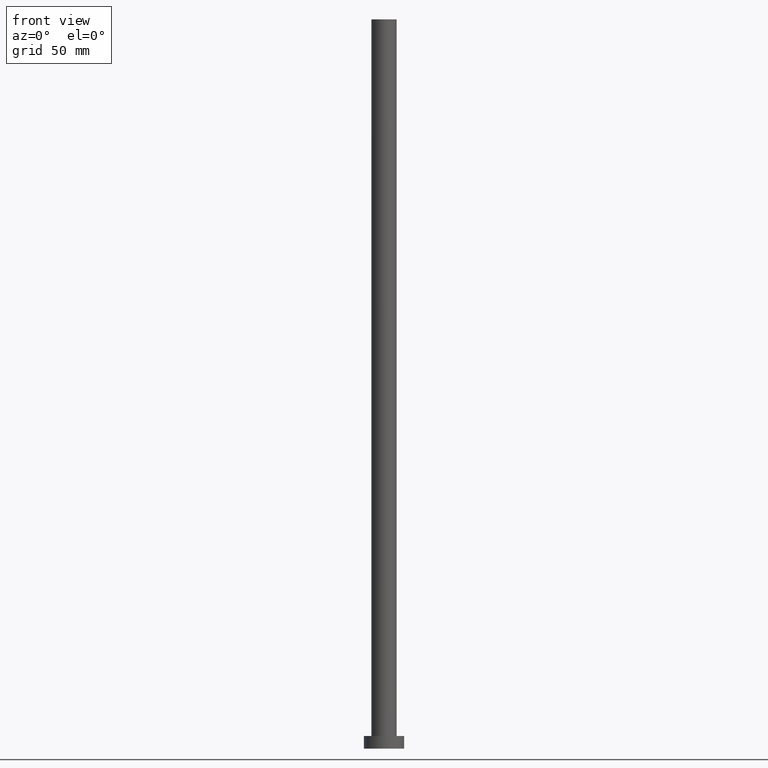
[diagram: clean part render]
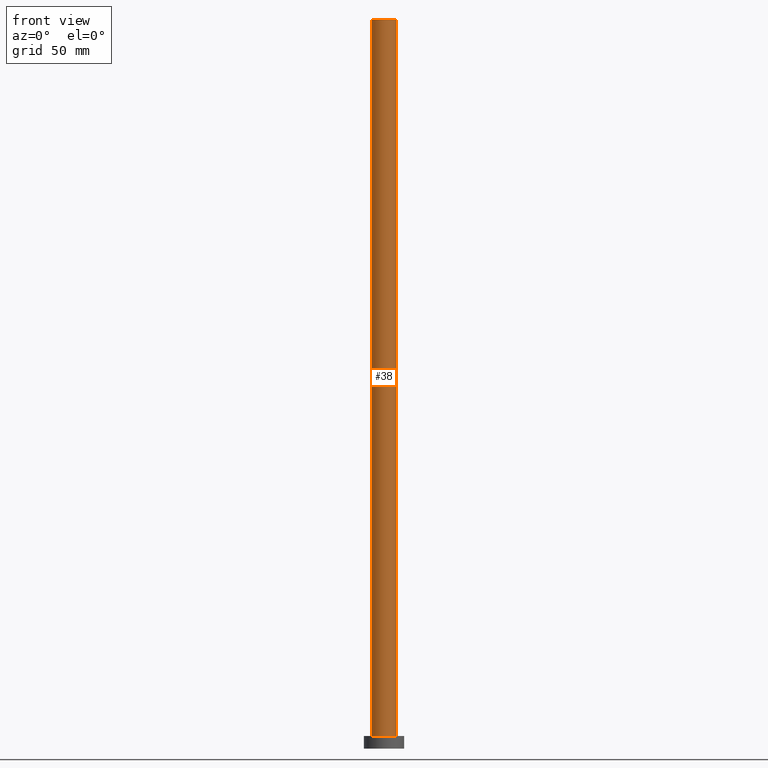
[diagram: same view with one face highlighted and labeled with its STEP entity id]
A machine part, front view. The second image highlights one B-rep face of the part: STEP entity #38.
In plain terms, the highlighted cylindrical surface (edge-blend (fillet) strip) has radius 5 mm, axis along (-0, -0, -1).
Its self-contained STEP definition (entity closure, byte-faithful):
#12 = LINE ( 'NONE', #169, #15 ) ;
#15 = VECTOR ( 'NONE', #29, 1000.000000000000000 ) ;
#24 = VERTEX_POINT ( 'NONE', #255 ) ;
#28 = LINE ( 'NONE', #152, #237 ) ;
#29 = DIRECTION ( 'NONE',  ( -0.000000000000000000, -0.000000000000000000, -1.000000000000000000 ) ) ;
#32 = CIRCLE ( 'NONE', #58, 5.000000000000000888 ) ;
#38 = ADVANCED_FACE ( 'NONE', ( #65 ), #198, .T. ) ;
#45 = CARTESIAN_POINT ( 'NONE',  ( 0.000000000000000000, 0.000000000000000000, 289.5000000000000000 ) ) ;
#46 = DIRECTION ( 'NONE',  ( 0.000000000000000000, 0.000000000000000000, 1.000000000000000000 ) ) ;
#54 = ORIENTED_EDGE ( 'NONE', *, *, #165, .T. ) ;
#58 = AXIS2_PLACEMENT_3D ( 'NONE', #45, #187, #148 ) ;
#65 = FACE_OUTER_BOUND ( 'NONE', #117, .T. ) ;
#68 = VERTEX_POINT ( 'NONE', #228 ) ;
#69 = DIRECTION ( 'NONE',  ( -0.000000000000000000, -0.000000000000000000, -1.000000000000000000 ) ) ;
#77 = EDGE_CURVE ( 'NONE', #68, #196, #12, .T. ) ;
#82 = EDGE_CURVE ( 'NONE', #253, #68, #32, .T. ) ;
#101 = DIRECTION ( 'NONE',  ( -1.000000000000000000, 0.000000000000000000, 0.000000000000000000 ) ) ;
#110 = CIRCLE ( 'NONE', #221, 5.000000000000000888 ) ;
#117 = EDGE_LOOP ( 'NONE', ( #131, #135, #243, #54 ) ) ;
#118 = EDGE_CURVE ( 'NONE', #253, #24, #28, .T. ) ;
#130 = CARTESIAN_POINT ( 'NONE',  ( 0.000000000000000000, 0.000000000000000000, 5.000000000000000000 ) ) ;
#131 = ORIENTED_EDGE ( 'NONE', *, *, #77, .F. ) ;
#135 = ORIENTED_EDGE ( 'NONE', *, *, #82, .F. ) ;
#143 = DIRECTION ( 'NONE',  ( -0.000000000000000000, -0.000000000000000000, -1.000000000000000000 ) ) ;
#148 = DIRECTION ( 'NONE',  ( 1.000000000000000000, 0.000000000000000000, 0.000000000000000000 ) ) ;
#151 = DIRECTION ( 'NONE',  ( 1.000000000000000000, 0.000000000000000000, 0.000000000000000000 ) ) ;
#152 = CARTESIAN_POINT ( 'NONE',  ( -5.000000000000000888, 0.000000000000000000, 289.5000000000000000 ) ) ;
#162 = CARTESIAN_POINT ( 'NONE',  ( 0.000000000000000000, 0.000000000000000000, 289.5000000000000000 ) ) ;
#165 = EDGE_CURVE ( 'NONE', #24, #196, #110, .T. ) ;
#169 = CARTESIAN_POINT ( 'NONE',  ( 5.000000000000000888, 6.123233995736767268E-16, 289.5000000000000000 ) ) ;
#171 = AXIS2_PLACEMENT_3D ( 'NONE', #162, #143, #101 ) ;
#174 = CARTESIAN_POINT ( 'NONE',  ( 5.000000000000000888, 6.123233995736767268E-16, 5.000000000000000000 ) ) ;
#187 = DIRECTION ( 'NONE',  ( 0.000000000000000000, 0.000000000000000000, 1.000000000000000000 ) ) ;
#196 = VERTEX_POINT ( 'NONE', #174 ) ;
#198 = CYLINDRICAL_SURFACE ( 'NONE', #171, 5.000000000000000888 ) ;
#217 = CARTESIAN_POINT ( 'NONE',  ( -5.000000000000000888, 0.000000000000000000, 289.5000000000000000 ) ) ;
#221 = AXIS2_PLACEMENT_3D ( 'NONE', #130, #46, #151 ) ;
#228 = CARTESIAN_POINT ( 'NONE',  ( 5.000000000000000888, 6.123233995736767268E-16, 289.5000000000000000 ) ) ;
#237 = VECTOR ( 'NONE', #69, 1000.000000000000000 ) ;
#243 = ORIENTED_EDGE ( 'NONE', *, *, #118, .T. ) ;
#253 = VERTEX_POINT ( 'NONE', #217 ) ;
#255 = CARTESIAN_POINT ( 'NONE',  ( -5.000000000000000888, 0.000000000000000000, 5.000000000000000000 ) ) ;